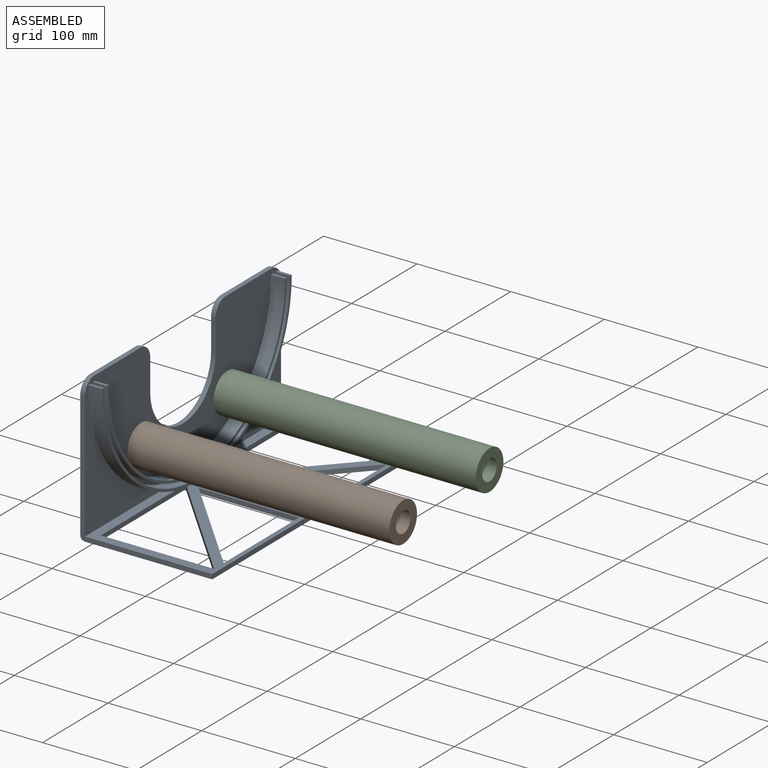
[diagram: assembled view]
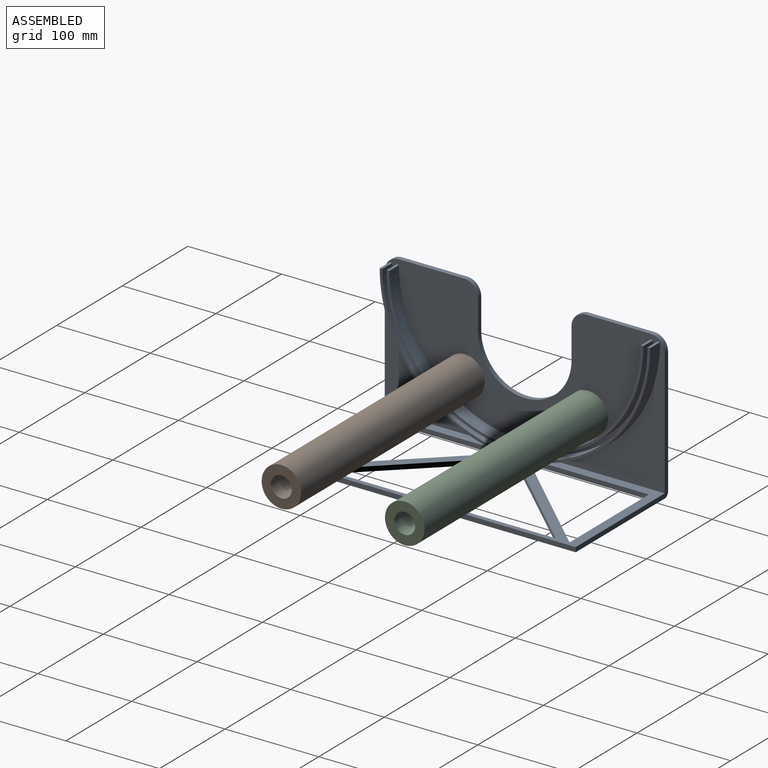
[diagram: assembled view, second angle]
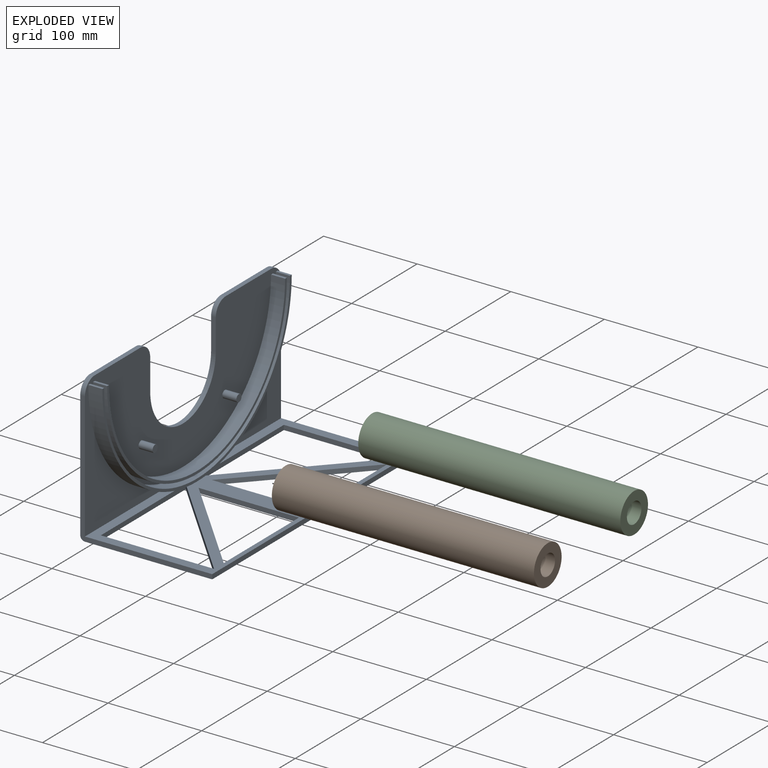
[diagram: exploded view]
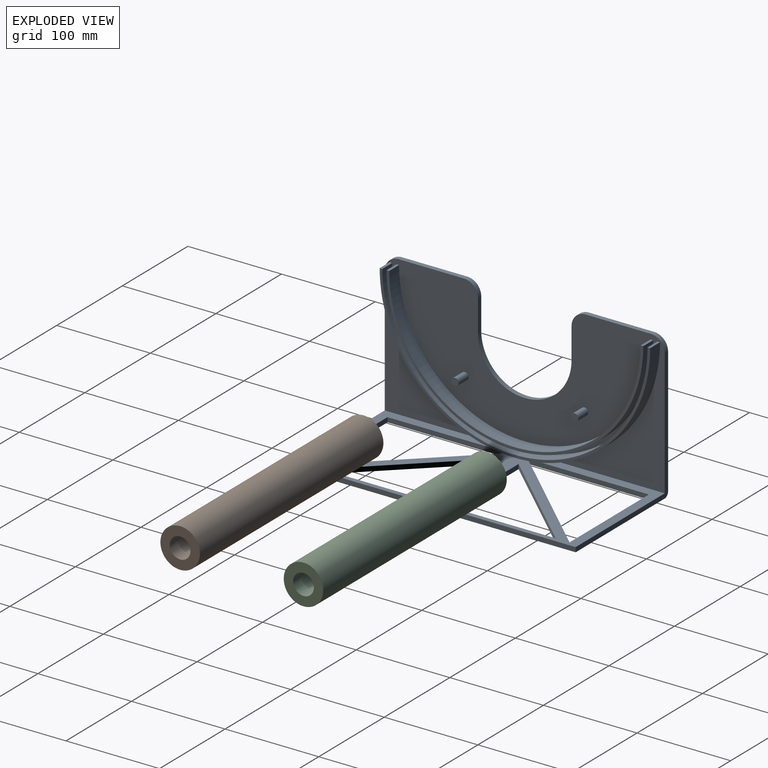
[diagram: exploded view, second angle]
FCSTD DOCUMENT  (FreeCAD 0.22R38385 (Git))
Label: filament dryer 
License: All rights reserved
objects: Sketcher::SketchObject×5, PartDesign::Pad×4, PartDesign::Pocket×3, App::Link×3, App::FeaturePython×3, PartDesign::Body×2, PartDesign::Thickness×1, PartDesign::Fillet×1, Assembly::JointGroup×1, Assembly::AssemblyObject×1, PartDesign::Point×1, PartDesign::Plane×1
note: 41 computed .brp shape members not serialized (recipe doc carries the construction recipe); baked Part::Feature solids carry a one-line shape summary decoded from their .brp

FEATURE [Sketcher::SketchObject] Sketch
  ArcFitTolerance = 1e-06
  AttachmentSupport = -> [YZ_Plane]
  FullyConstrained = false
  MakeInternals = false
  MapMode = 5
  Placement = pos=(0,0,0) rot=(0.57735,0.57735,0.57735;2.0944rad)
  sketch-geometry (16):
    g0: LineSegment StartX=-149.602 StartY=150 StartZ=0 EndX=-149.602 EndY=0 EndZ=0
    g1: LineSegment StartX=-149.602 StartY=0 StartZ=0 EndX=149.602 EndY=0 EndZ=0
    g2: LineSegment StartX=149.602 StartY=0 StartZ=0 EndX=149.602 EndY=150 EndZ=0
    g3: LineSegment StartX=-149.602 StartY=150 StartZ=0 EndX=149.602 EndY=150 EndZ=0
    g4: Circle CenterX=-63.925 CenterY=56.075 CenterZ=0 NormalX=0 NormalY=0 NormalZ=1 AngleXU=0 Radius=3.925
    g5: Circle CenterX=63.925 CenterY=56.075 CenterZ=0 NormalX=0 NormalY=0 NormalZ=1 AngleXU=0 Radius=3.925
    g6: ArcOfCircle CenterX=0 CenterY=144.472 CenterZ=0 NormalX=0 NormalY=0 NormalZ=1 AngleXU=0 Radius=134.32 StartAngle=3.14159 EndAngle=6.28319
    g7: ArcOfCircle CenterX=0 CenterY=144.472 CenterZ=0 NormalX=0 NormalY=0 NormalZ=1 AngleXU=0 Radius=137.107 StartAngle=3.14159 EndAngle=6.28319
    g8: ArcOfCircle CenterX=0 CenterY=144.472 CenterZ=0 NormalX=0 NormalY=0 NormalZ=1 AngleXU=0 Radius=141.658 StartAngle=3.14159 EndAngle=6.28319
    g9: ArcOfCircle CenterX=0 CenterY=144.472 CenterZ=0 NormalX=0 NormalY=0 NormalZ=1 AngleXU=0 Radius=144.472 StartAngle=3.14159 EndAngle=6.28319
    g10: LineSegment StartX=-134.32 StartY=144.472 StartZ=0 EndX=-137.107 EndY=144.472 EndZ=0
    g11: LineSegment StartX=-141.658 StartY=144.472 StartZ=0 EndX=-144.472 EndY=144.472 EndZ=0
    g12: LineSegment StartX=134.32 StartY=144.472 StartZ=0 EndX=137.107 EndY=144.472 EndZ=0
    g13: LineSegment StartX=141.658 StartY=144.472 StartZ=0 EndX=144.472 EndY=144.472 EndZ=0
    g14: LineSegment [constr] StartX=-141.658 StartY=144.472 StartZ=0 EndX=-137.107 EndY=144.472 EndZ=0
    g15: LineSegment [constr] StartX=137.107 StartY=144.472 StartZ=0 EndX=141.658 EndY=144.472 EndZ=0
  constraints (41):
    c: PointOnObject(g0,g-1)
    c: Vertical(g0)
    c: Coincident(g1,g0)
    c: Coincident(g2,g1)
    c: Vertical(g2)
    c: Equal(g2,g0)
    c: Symmetric(g1,g0,g-2)
    c: DistanceY(g0,g0) = 150
    c: Coincident(g3,g0)
    c: Coincident(g3,g2)
    c: Distance(g4,g3) = 90
    c: Diameter(g4) = 7.85
    c: Distance(g4,g-2) = 60
    c: Symmetric(g4,g5,g-2)
    c: Equal(g5,g4)
    c: Radius(g6) = 134.32
    c: Angle(g6) = 3.14159
    c: PointOnObject(g6,g-2)
    c: Coincident(g7,g6)
    c: Coincident(g8,g6)
    c: Coincident(g9,g6)
    c: Tangent(g9,g1)
    c: Coincident(g10,g6)
    c: Horizontal(g10)
    c: Coincident(g7,g10)
    c: Coincident(g8,g11)
    c: Coincident(g9,g11)
    c: Coincident(g12,g6)
    c: Horizontal(g12)
    c: Coincident(g7,g12)
    c: Coincident(g8,g13)
    c: Coincident(g9,g13)
    c: Horizontal(g6,g6)
    c: Horizontal(g8,g8)
    c: Horizontal(g11)
    c: Horizontal(g13)
    c: Coincident(g14,g8)
    c: Coincident(g14,g7)
    c: Coincident(g15,g7)
    c: Coincident(g15,g8)
    c: Horizontal(g15)
FEATURE [PartDesign::Pad] Pad
  Direction = (1,0,0)
  Length = 282
  Length2 = 10
  Placement = pos=(0,0,0) rot=(1,1,1;2.0944rad)
  Profile = -> Sketch [Edge1,Edge2,Edge3,Edge4]
  ReferenceAxis = -> Sketch [N_Axis]
  Refine = true
  Suppressed = false
  Type = 0
FEATURE [Sketcher::SketchObject] Sketch002
  ArcFitTolerance = 1e-06
  AttachmentSupport = -> [YZ_Plane001]
  FullyConstrained = true
  MakeInternals = false
  MapMode = 5
  Placement = pos=(0,0,0) rot=(0.57735,0.57735,0.57735;2.0944rad)
  sketch-geometry (2):
    g0: Circle CenterX=0 CenterY=0 CenterZ=0 NormalX=0 NormalY=0 NormalZ=1 AngleXU=0 Radius=11.075
    g1: Circle CenterX=0 CenterY=0 CenterZ=0 NormalX=0 NormalY=0 NormalZ=1 AngleXU=0 Radius=21.075
  constraints (4):
    c: Diameter(g0) = 22.15
    c: Coincident(g0,g-1)
    c: Coincident(g1,g0)
    c: Distance(g0,g1) = 10
FEATURE [PartDesign::Pad] Pad003
  Direction = (1,0,0)
  Length = 280
  Length2 = 10
  Placement = pos=(0,0,0) rot=(1,1,1;2.0944rad)
  Profile = -> Sketch002
  ReferenceAxis = -> Sketch002 [N_Axis]
  Refine = true
  Suppressed = false
  Type = 0
FEATURE [PartDesign::Body] Body001  label="spoon cilinder"
  AllowCompound = false
  Group = -> [Sketch002,Pad003]
  Origin = -> Origin001
  Tip = -> Pad003
FEATURE [Sketcher::SketchObject] Sketch004
  ArcFitTolerance = 1e-06
  FullyConstrained = false
  MakeInternals = false
  MapMode = 5
  Placement = pos=(290,-6.44e-14,3.22e-14) rot=(0.57735,0.57735,0.57735;2.0944rad)
  sketch-geometry (4):
    g0: ArcOfCircle CenterX=0 CenterY=247.175 CenterZ=0 NormalX=0 NormalY=0 NormalZ=1 AngleXU=0 Radius=50 StartAngle=0 EndAngle=3.14159
    g1: ArcOfCircle CenterX=0 CenterY=102 CenterZ=0 NormalX=0 NormalY=0 NormalZ=1 AngleXU=0 Radius=50 StartAngle=3.14159 EndAngle=6.28319
    g2: LineSegment StartX=50 StartY=247.175 StartZ=0 EndX=50 EndY=102 EndZ=0
    g3: LineSegment StartX=-50 StartY=247.175 StartZ=0 EndX=-50 EndY=102 EndZ=0
  constraints (8):
    c: Tangent(g0,g2) = 1.5708
    c: Tangent(g0,g3) = -1.5708
    c: Tangent(g1,g2) = 1.5708
    c: Tangent(g1,g3) = -1.5708
    c: Equal(g0,g1)
    c: PointOnObject(g1,g-2)
    c: PointOnObject(g0,g-2)
    c: Radius(g0) = 50
FEATURE [PartDesign::Thickness] Thickness
  Base = -> Pad [Face1,Face4,Face3]
  BaseFeature = -> Pad
  Intersection = false
  Join = 0
  Mode = 0
  Refine = true
  SupportTransform = false
  Suppressed = false
  Value = 5
FEATURE [PartDesign::Pad] Pad004
  BaseFeature = -> Thickness
  Direction = (1,0,0)
  Length = 15
  Length2 = 10
  Profile = -> Sketch [Edge14,Edge12,Edge10,Edge8,Edge7,Vertex12,Edge11,Edge5,Edge6,Edge9,Edge13]
  ReferenceAxis = -> Sketch [N_Axis]
  Refine = true
  Suppressed = false
  Type = 0
FEATURE [Sketcher::SketchObject] Sketch006
  ArcFitTolerance = 1e-06
  AttachmentSupport = -> [Pad004]
  FullyConstrained = false
  MakeInternals = false
  MapMode = 5
  Placement = pos=(282,0,0) rot=(0.57735,-0.57735,-0.57735;2.0944rad)
  sketch-geometry (16):
    g0: LineSegment StartX=-149.602 StartY=150 StartZ=0 EndX=-149.602 EndY=0 EndZ=0
    g1: LineSegment StartX=-149.602 StartY=0 StartZ=0 EndX=149.602 EndY=0 EndZ=0
    g2: LineSegment StartX=149.602 StartY=0 StartZ=0 EndX=149.602 EndY=150 EndZ=0
    g3: LineSegment StartX=-149.602 StartY=150 StartZ=0 EndX=149.602 EndY=150 EndZ=0
    g4: Circle CenterX=-73.925 CenterY=56.075 CenterZ=0 NormalX=0 NormalY=0 NormalZ=1 AngleXU=0 Radius=3.925
    g5: Circle CenterX=73.925 CenterY=56.075 CenterZ=0 NormalX=0 NormalY=0 NormalZ=1 AngleXU=0 Radius=3.925
    g6: ArcOfCircle CenterX=0 CenterY=144.472 CenterZ=0 NormalX=0 NormalY=0 NormalZ=1 AngleXU=0 Radius=134.32 StartAngle=3.14159 EndAngle=6.28319
    g7: ArcOfCircle CenterX=0 CenterY=144.472 CenterZ=0 NormalX=0 NormalY=0 NormalZ=1 AngleXU=0 Radius=137.107 StartAngle=3.14159 EndAngle=6.28319
    g8: ArcOfCircle CenterX=0 CenterY=144.472 CenterZ=0 NormalX=0 NormalY=0 NormalZ=1 AngleXU=0 Radius=141.658 StartAngle=3.14159 EndAngle=6.28319
    g9: ArcOfCircle CenterX=0 CenterY=144.472 CenterZ=0 NormalX=0 NormalY=0 NormalZ=1 AngleXU=0 Radius=144.472 StartAngle=3.14159 EndAngle=6.28319
    g10: LineSegment StartX=-134.32 StartY=144.472 StartZ=0 EndX=-137.107 EndY=144.472 EndZ=0
    g11: LineSegment StartX=-141.658 StartY=144.472 StartZ=0 EndX=-144.472 EndY=144.472 EndZ=0
    g12: LineSegment StartX=134.32 StartY=144.472 StartZ=0 EndX=137.107 EndY=144.472 EndZ=0
    g13: LineSegment StartX=141.658 StartY=144.472 StartZ=0 EndX=144.472 EndY=144.472 EndZ=0
    g14: LineSegment [constr] StartX=-141.658 StartY=144.472 StartZ=0 EndX=-137.107 EndY=144.472 EndZ=0
    g15: LineSegment [constr] StartX=137.107 StartY=144.472 StartZ=0 EndX=141.658 EndY=144.472 EndZ=0
  constraints (41):
    c: PointOnObject(g0,g-1)
    c: Vertical(g0)
    c: Coincident(g1,g0)
    c: Coincident(g2,g1)
    c: Vertical(g2)
    c: Equal(g2,g0)
    c: Symmetric(g1,g0,g-2)
    c: DistanceY(g0,g0) = 150
    c: Coincident(g3,g0)
    c: Coincident(g3,g2)
    c: Distance(g4,g3) = 90
    c: Diameter(g4) = 7.85
    c: Distance(g4,g-2) = 70
    c: Symmetric(g4,g5,g-2)
    c: Equal(g5,g4)
    c: Radius(g6) = 134.32
    c: Angle(g6) = 3.14159
    c: PointOnObject(g6,g-2)
    c: Coincident(g7,g6)
    c: Coincident(g8,g6)
    c: Coincident(g9,g6)
    c: Tangent(g9,g1)
    c: Coincident(g10,g6)
    c: Horizontal(g10)
    c: Coincident(g7,g10)
    c: Coincident(g8,g11)
    c: Coincident(g9,g11)
    c: Coincident(g12,g6)
    c: Horizontal(g12)
    c: Coincident(g7,g12)
    c: Coincident(g8,g13)
    c: Coincident(g9,g13)
    c: Horizontal(g6,g6)
    c: Horizontal(g8,g8)
    c: Horizontal(g11)
    c: Horizontal(g13)
    c: Coincident(g14,g8)
    c: Coincident(g14,g7)
    c: Coincident(g15,g7)
    c: Coincident(g15,g8)
    c: Horizontal(g15)
FEATURE [PartDesign::Pad] Pad005
  BaseFeature = -> Pad004
  Direction = (-1,0,0)
  Length = 15
  Length2 = 10
  Profile = -> Sketch006 [Edge5,Edge8,Edge10,Edge12,Edge14,Edge6,Edge9,Edge13,Edge11,Edge7]
  ReferenceAxis = -> Sketch006 [N_Axis]
  Refine = true
  Suppressed = false
  Type = 0
FEATURE [PartDesign::Pocket] Pocket
  BaseFeature = -> Pad005
  Direction = (-1,-1e-16,1e-16)
  Length = 5
  Length2 = 5
  Profile = -> Sketch004
  ReferenceAxis = -> Sketch004 [N_Axis]
  Refine = true
  Suppressed = false
  Type = 1
FEATURE [PartDesign::Fillet] Fillet
  Base = -> Pocket [Edge61,Edge101,Edge60,Edge77,Edge52,Edge9,Edge58,Edge12]
  BaseFeature = -> Pocket
  Radius = 15
  Refine = true
  SupportTransform = false
  Suppressed = false
  UseAllEdges = false
FEATURE [Sketcher::SketchObject] Sketch007
  ArcFitTolerance = 1e-06
  AttachmentSupport = -> [Fillet]
  ExternalGeometry = -> [Fillet]
  FullyConstrained = false
  MakeInternals = false
  MapMode = 5
  Placement = pos=(0,0,3e-16) rot=(0,0,1;0rad)
  sketch-geometry (30):
    g0: LineSegment [constr] StartX=0 StartY=149.602 StartZ=0 EndX=0 EndY=-149.602 EndZ=0
    g1: LineSegment [constr] StartX=0 StartY=-149.602 StartZ=0 EndX=282 EndY=-149.602 EndZ=0
    g2: LineSegment [constr] StartX=282 StartY=-149.602 StartZ=0 EndX=282 EndY=149.602 EndZ=0
    g3: LineSegment [constr] StartX=282 StartY=149.602 StartZ=0 EndX=0 EndY=149.602 EndZ=0
    g4: LineSegment [constr] StartX=141 StartY=230.978 StartZ=0 EndX=141 EndY=-178.044 EndZ=0
    g5: LineSegment StartX=10 StartY=139.602 StartZ=0 EndX=10 EndY=10 EndZ=0
    g6: LineSegment StartX=10 StartY=10 StartZ=0 EndX=131 EndY=139.602 EndZ=0
    g7: LineSegment StartX=10 StartY=139.602 StartZ=0 EndX=131 EndY=139.602 EndZ=0
    g8: LineSegment StartX=23.6809 StartY=10 StartZ=0 EndX=131 EndY=124.949 EndZ=0
    g9: LineSegment StartX=23.6809 StartY=10 StartZ=0 EndX=131 EndY=10 EndZ=0
    g10: LineSegment StartX=131 StartY=10 StartZ=0 EndX=131 EndY=124.949 EndZ=0
    g11: LineSegment StartX=272 StartY=139.602 StartZ=0 EndX=272 EndY=10 EndZ=0
    g12: LineSegment StartX=272 StartY=139.602 StartZ=0 EndX=151 EndY=139.602 EndZ=0
    g13: LineSegment StartX=272 StartY=10 StartZ=0 EndX=151 EndY=139.602 EndZ=0
    g14: LineSegment StartX=258.319 StartY=10 StartZ=0 EndX=151 EndY=124.949 EndZ=0
    g15: LineSegment StartX=151 StartY=10 StartZ=0 EndX=151 EndY=124.949 EndZ=0
    g16: LineSegment StartX=258.319 StartY=10 StartZ=0 EndX=151 EndY=10 EndZ=0
    g17: LineSegment [constr] StartX=141 StartY=-230.978 StartZ=0 EndX=141 EndY=178.044 EndZ=0
    g18: LineSegment StartX=10 StartY=-139.602 StartZ=0 EndX=10 EndY=-10 EndZ=0
    g19: LineSegment StartX=10 StartY=-10 StartZ=0 EndX=131 EndY=-139.602 EndZ=0
    g20: LineSegment StartX=10 StartY=-139.602 StartZ=0 EndX=131 EndY=-139.602 EndZ=0
    g21: LineSegment StartX=23.6809 StartY=-10 StartZ=0 EndX=131 EndY=-124.949 EndZ=0
    g22: LineSegment StartX=23.6809 StartY=-10 StartZ=0 EndX=131 EndY=-10 EndZ=0
    g23: LineSegment StartX=131 StartY=-10 StartZ=0 EndX=131 EndY=-124.949 EndZ=0
    g24: LineSegment StartX=272 StartY=-139.602 StartZ=0 EndX=272 EndY=-10 EndZ=0
    g25: LineSegment StartX=272 StartY=-139.602 StartZ=0 EndX=151 EndY=-139.602 EndZ=0
    g26: LineSegment StartX=272 StartY=-10 StartZ=0 EndX=151 EndY=-139.602 EndZ=0
    g27: LineSegment StartX=258.319 StartY=-10 StartZ=0 EndX=151 EndY=-124.949 EndZ=0
    g28: LineSegment StartX=151 StartY=-10 StartZ=0 EndX=151 EndY=-124.949 EndZ=0
    g29: LineSegment StartX=258.319 StartY=-10 StartZ=0 EndX=151 EndY=-10 EndZ=0
  constraints (59):
    c: Coincident(g0,g1)
    c: Coincident(g1,g2)
    c: Coincident(g2,g3)
    c: Coincident(g3,g0)
    c: Vertical(g0)
    c: Vertical(g2)
    c: Horizontal(g1)
    c: Horizontal(g3)
    c: Coincident(g0,g-3)
    c: Coincident(g1,g-4)
    c: Symmetric(g0,g1,g4)
    c: Vertical(g5)
    c: Coincident(g6,g5)
    c: Coincident(g7,g5)
    c: Coincident(g7,g6)
    c: Horizontal(g7)
    c: Parallel(g6,g8)
    c: Distance(g8,g6) = 10
    c: Distance(g3,g7) = 10
    c: Distance(g0,g5) = 10
    c: Distance(g6,g4) = 10
    c: Distance(g5,g-1) = 10
    c: Coincident(g9,g8)
    c: Horizontal(g9)
    c: Coincident(g10,g9)
    c: Coincident(g10,g8)
    c: Vertical(g10)
    c: Distance(g9,g4) = 10
    c: Distance(g9,g-1) = 10
    c: Coincident(g13,g11)
    c: Coincident(g12,g11)
    c: Coincident(g12,g13)
    c: Parallel(g13,g14)
    c: Distance(g14,g13) = 10
    c: Coincident(g16,g14)
    c: Coincident(g15,g16)
    c: Coincident(g15,g14)
    c: Vertical(g18)
    c: Coincident(g19,g18)
    c: Coincident(g20,g18)
    c: Coincident(g20,g19)
    c: Horizontal(g20)
    c: Parallel(g19,g21)
    c: Distance(g21,g19) = 10
    c: Distance(g19,g17) = 10
    c: Coincident(g22,g21)
    c: Horizontal(g22)
    c: Coincident(g23,g22)
    c: Coincident(g23,g21)
    c: Vertical(g23)
    c: Distance(g22,g17) = 10
    c: Coincident(g26,g24)
    c: Coincident(g25,g24)
    c: Coincident(g25,g26)
    c: Parallel(g26,g27)
    c: Distance(g27,g26) = 10
    c: Coincident(g29,g27)
    c: Coincident(g28,g29)
    c: Coincident(g28,g27)
FEATURE [PartDesign::Pocket] Pocket001
  BaseFeature = -> Fillet
  Direction = (0,0,-1)
  Length = 5
  Length2 = 5
  Profile = -> Sketch007
  ReferenceAxis = -> Sketch007 [N_Axis]
  Refine = true
  Suppressed = false
  Type = 1
FEATURE [App::Link] spool_holder  label="spool holder001"
  LinkedObject = -> Body
FEATURE [App::FeaturePython] GroundedJoint  # Assembly grounded joint (typed FeaturePython)
  ObjectToGround = -> spool_holder
FEATURE [App::Link] spoon_cilinder  label="spoon cilinder001"
  LinkPlacement = pos=(0,-63.925,56.075) rot=(0,0,1;0rad)
  LinkedObject = -> Body001
  Placement = pos=(0,-63.925,56.075) rot=(0,0,1;0rad)
FEATURE [App::Link] spoon_cilinder001  label="spoon cilinder002"
  LinkPlacement = pos=(0,67.85,56.075) rot=(1,0,0;1.5708rad)
  LinkedObject = -> Body001
  Placement = pos=(0,67.85,56.075) rot=(1,0,0;1.5708rad)
FEATURE [App::FeaturePython] Cl__ndrica  # Assembly joint (typed FeaturePython)
  Activated = true
  AngleMax = 0
  AngleMin = 0
  Detach1 = false
  Detach2 = false
  Distance = 0
  Distance2 = 0
  EnableAngleMax = false
  EnableAngleMin = false
  EnableLengthMax = false
  EnableLengthMin = false
  JointType = 2 (Cylindrical)
  LengthMax = 0
  LengthMin = 0
  Offset = (0,0,0)
  Placement1 = pos=(0,0,0) rot=(0.57735,0.57735,0.57735;2.0944rad)
  Placement2 = pos=(0,67.85,56.075) rot=(0.707107,0,0.707107;3.14159rad)
  Reference1 = -> Assembly [spoon_cilinder001.Pad003.Face2,spoon_cilinder001.Pad003.Edge2]
  Reference2 = -> Assembly [spool_holder.Pocket001.Edge144,spool_holder.Pocket001.Vertex22]
  Rotation = 0
FEATURE [App::FeaturePython] Cl__ndrica001  # Assembly joint (typed FeaturePython)
  Activated = true
  AngleMax = 0
  AngleMin = 0
  Detach1 = false
  Detach2 = false
  Distance = 0
  Distance2 = 0
  EnableAngleMax = false
  EnableAngleMin = false
  EnableLengthMax = false
  EnableLengthMin = false
  JointType = 2 (Cylindrical)
  LengthMax = 0
  LengthMin = 0
  Offset = (0,0,0)
  Placement1 = pos=(0,0,0) rot=(0.57735,0.57735,0.57735;2.0944rad)
  Placement2 = pos=(0,-63.925,56.075) rot=(0.57735,0.57735,0.57735;2.0944rad)
  Reference1 = -> Assembly [spoon_cilinder.Pad003.Edge5,spoon_cilinder.Pad003.Edge5]
  Reference2 = -> Assembly [spool_holder.Pocket001.Edge29,spool_holder.Pocket001.Edge29]
  Rotation = 0
FEATURE [Assembly::JointGroup] Joints
  Group = -> [GroundedJoint,Cl__ndrica,Cl__ndrica001]
FEATURE [Assembly::AssemblyObject] Assembly
  Group = -> [Joints,spool_holder,GroundedJoint,spoon_cilinder,spoon_cilinder001,Cl__ndrica,Cl__ndrica001]
  Origin = -> Origin002
  Type = Assembly
FEATURE [PartDesign::Point] DatumPoint
  AttacherType = Attacher::AttachEnginePoint
  AttachmentSupport = -> [Pocket001]
  MapMode = 37
  Placement = pos=(141,1.69326e-06,3e-16) rot=(0,0,1;0rad)
FEATURE [PartDesign::Plane] DatumPlane
  AttachmentSupport = -> [YZ_Plane,DatumPoint]
  Length = 344.969
  MapMode = 53
  Placement = pos=(141,-1.57e-14,1.57e-14) rot=(0.57735,0.57735,0.57735;2.0944rad)
  ResizeMode = 0
  Width = 220.765
FEATURE [PartDesign::Pocket] Pocket002
  BaseFeature = -> Pocket001
  Direction = (-1,0,0)
  Length = 5
  Length2 = 5
  Profile = -> DatumPlane [Plane]
  Refine = true
  Suppressed = false
  Type = 0
FEATURE [PartDesign::Body] Body  label="spool holder"
  AllowCompound = false
  Group = -> [Sketch,Pad,Sketch004,Thickness,Pad004,Sketch006,Pad005,Pocket,Fillet,Sketch007,Pocket001,DatumPoint,DatumPlane,Pocket002]
  Origin = -> Origin
  Tip = -> Pocket002
